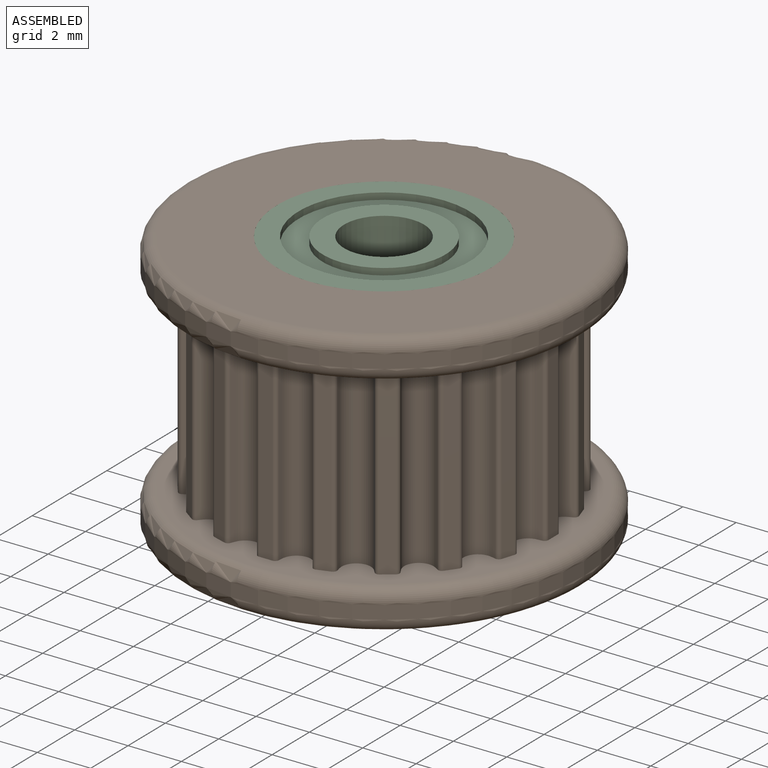
[diagram: assembled view]
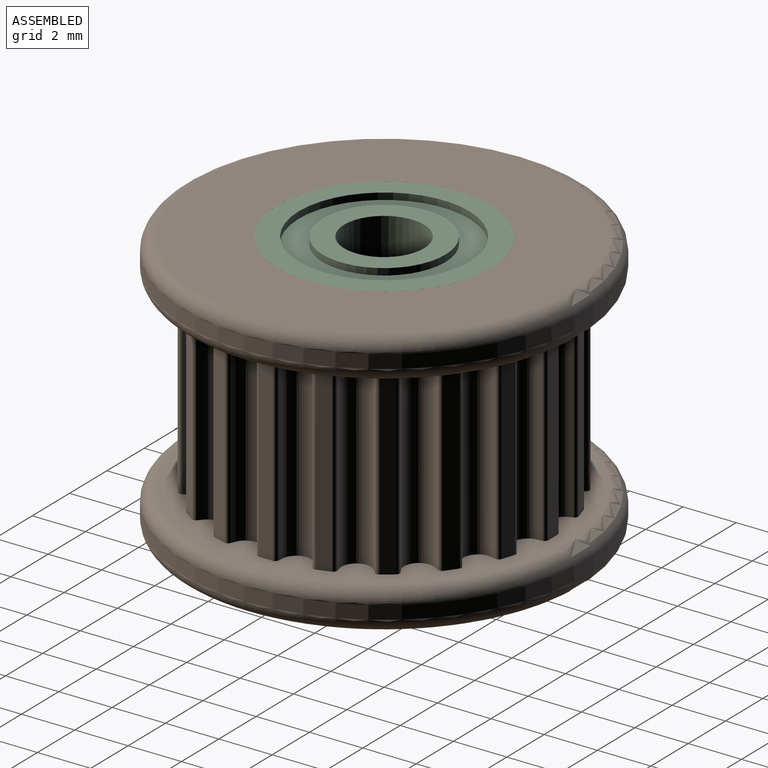
[diagram: assembled view, second angle]
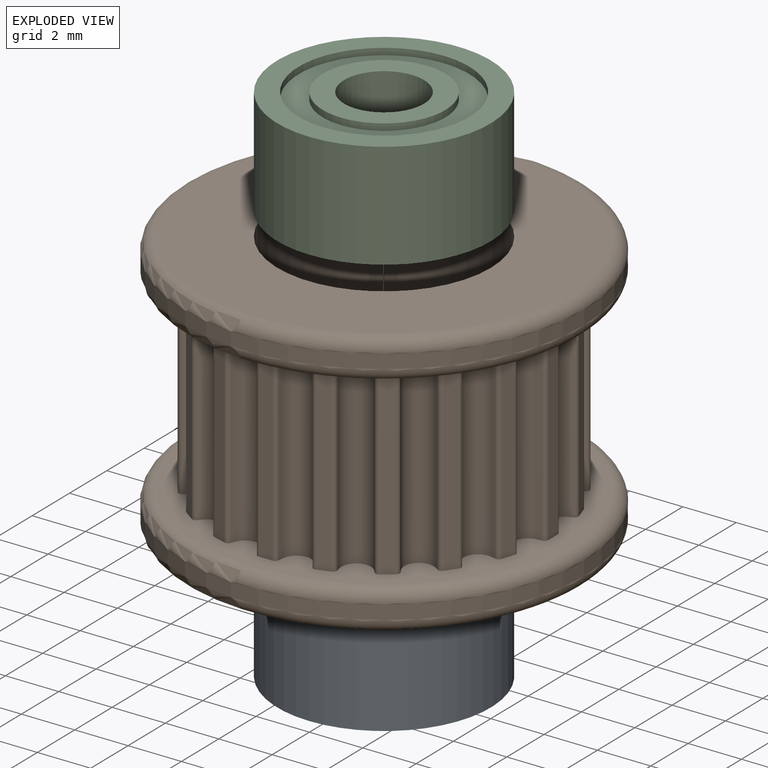
[diagram: exploded view]
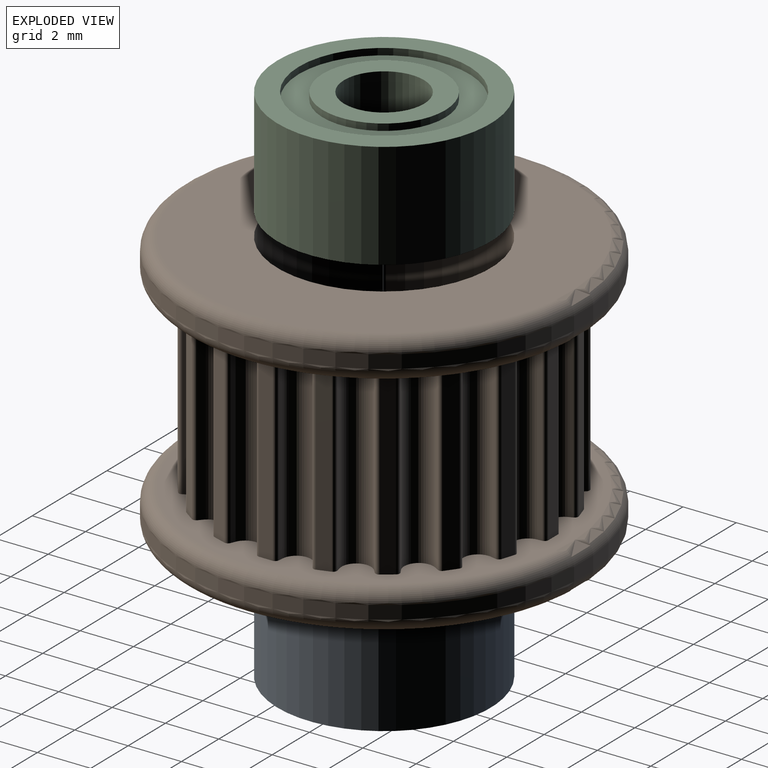
[diagram: exploded view, second angle]
ASSEMBLY  parts=3 mates=2
PART A: 12 faces, bbox 8x4x8 mm
  f0: cylinder r=2.3mm len=4.6mm, axis (0,1,0), area 3.6mm2, adj f4,f11
  f1: cylinder r=1.5mm len=4mm, axis (0,1,0), area 37.7mm2, adj f3,f4
  f2: cylinder r=2.3mm len=4.6mm, axis (0,1,0), area 3.6mm2, adj f3,f10
  f3: plane 4.6x4.6mm, normal (0,-1,0), area 9.6mm2, adj f1,f2
  f4: plane 4.6x4.6mm, normal (0,1,0), area 9.6mm2, adj f0,f1
  f5: cylinder r=3.2mm len=6.4mm, axis (0,1,0), area 5mm2, adj f9,f11
  f6: cylinder r=3.2mm len=6.4mm, axis (0,1,0), area 5mm2, adj f8,f10
  f7: cylinder r=4mm len=8mm, axis (0,1,0), area 100.5mm2, adj f8,f9
  f8: plane 8x8mm, normal (0,-1,0), area 18.1mm2, adj f6,f7
  f9: plane 8x8mm, normal (0,1,0), area 18.1mm2, adj f5,f7
  f10: plane 6.4x6.4mm, normal (0,-1,0), area 15.6mm2, adj f2,f6
  f11: plane 6.4x6.4mm, normal (0,1,0), area 15.6mm2, adj f0,f5
PART B: 155 faces, bbox 16.2x16.2x10 mm
  f0: cylinder r=1.5mm len=3mm, axis (0,0,1), area 18.8mm2, adj f152,f153
  f1: plane 7x0.5mm, normal (1,0,0), area 3.5mm2, adj f2,f7,f141,f146
  f2: cylinder r=0.14mm len=7mm, axis (0,0,-1), area 1.5mm2, adj f1,f3,f141,f146
  f3: plane 7x0.18mm, normal (0.09,1,0), area 1.3mm2, adj f2,f4,f141,f146
  f4: cylinder r=0.56mm len=7mm, axis (0,0,-1), area 5.1mm2, adj f3,f138,f141,f146
  f5: cylinder r=0.56mm len=7mm, axis (0,0,-1), area 5.1mm2, adj f6,f11,f141,f146
  f6: plane 7x0.18mm, normal (0.09,-1,0), area 1.3mm2, adj f5,f7,f141,f146
  f7: cylinder r=0.14mm len=7mm, axis (0,0,-1), area 1.5mm2, adj f1,f6,f141,f146
  f8: plane 7x0.48mm, normal (0.95,-0.31,0), area 3.5mm2, adj f9,f14,f141,f146
  f9: cylinder r=0.14mm len=7mm, axis (0,0,-1), area 1.5mm2, adj f8,f10,f141,f146
  f10: plane 7x0.17mm, normal (0.39,0.92,0), area 1.3mm2, adj f9,f11,f141,f146
  f11: cylinder r=0.56mm len=7mm, axis (0,0,-1), area 5.1mm2, adj f5,f10,f141,f146
  f12: cylinder r=0.56mm len=7mm, axis (0,0,-1), area 5.1mm2, adj f13,f18,f141,f146
  f13: plane 7x0.18mm, normal (-0.22,-0.98,0), area 1.3mm2, adj f12,f14,f141,f146
  f14: cylinder r=0.14mm len=7mm, axis (0,0,-1), area 1.5mm2, adj f8,f13,f141,f146
  f15: plane 7x0.41mm, normal (0.81,-0.59,0), area 3.5mm2, adj f16,f21,f141,f146
  f16: cylinder r=0.14mm len=7mm, axis (0,0,-1), area 1.5mm2, adj f15,f17,f141,f146
  f17: plane 7x0.14mm, normal (0.66,0.75,0), area 1.3mm2, adj f16,f18,f141,f146
  f18: cylinder r=0.56mm len=7mm, axis (0,0,-1), area 5.1mm2, adj f12,f17,f141,f146
  f19: cylinder r=0.56mm len=7mm, axis (0,0,-1), area 5.1mm2, adj f20,f25,f141,f146
  f20: plane 7x0.16mm, normal (-0.51,-0.86,0), area 1.3mm2, adj f19,f21,f141,f146
  f21: cylinder r=0.14mm len=7mm, axis (0,0,-1), area 1.5mm2, adj f15,f20,f141,f146
  f22: plane 7x0.41mm, normal (0.59,-0.81,0), area 3.5mm2, adj f23,f28,f141,f146
  f23: cylinder r=0.14mm len=7mm, axis (0,0,-1), area 1.5mm2, adj f22,f24,f141,f146
  f24: plane 7x0.16mm, normal (0.86,0.51,0), area 1.3mm2, adj f23,f25,f141,f146
  f25: cylinder r=0.56mm len=7mm, axis (0,0,-1), area 5.1mm2, adj f19,f24,f141,f146
  f26: cylinder r=0.56mm len=7mm, axis (0,0,-1), area 5.1mm2, adj f27,f32,f141,f146
  f27: plane 7x0.14mm, normal (-0.75,-0.66,0), area 1.3mm2, adj f26,f28,f141,f146
  f28: cylinder r=0.14mm len=7mm, axis (0,0,-1), area 1.5mm2, adj f22,f27,f141,f146
  f29: plane 7x0.48mm, normal (0.31,-0.95,0), area 3.5mm2, adj f30,f35,f141,f146
  f30: cylinder r=0.14mm len=7mm, axis (0,0,-1), area 1.5mm2, adj f29,f31,f141,f146
  f31: plane 7x0.18mm, normal (0.98,0.22,0), area 1.3mm2, adj f30,f32,f141,f146
  f32: cylinder r=0.56mm len=7mm, axis (0,0,-1), area 5.1mm2, adj f26,f31,f141,f146
  f33: cylinder r=0.56mm len=7mm, axis (0,0,-1), area 5.1mm2, adj f34,f39,f141,f146
  f34: plane 7x0.17mm, normal (-0.92,-0.39,0), area 1.3mm2, adj f33,f35,f141,f146
  f35: cylinder r=0.14mm len=7mm, axis (0,0,-1), area 1.5mm2, adj f29,f34,f141,f146
  f36: plane 7x0.5mm, normal (0,-1,0), area 3.5mm2, adj f37,f42,f141,f146
  f37: cylinder r=0.14mm len=7mm, axis (0,0,-1), area 1.5mm2, adj f36,f38,f141,f146
  f38: plane 7x0.18mm, normal (1,-0.09,0), area 1.3mm2, adj f37,f39,f141,f146
  f39: cylinder r=0.56mm len=7mm, axis (0,0,-1), area 5.1mm2, adj f33,f38,f141,f146
  f40: cylinder r=0.56mm len=7mm, axis (0,0,-1), area 5.1mm2, adj f41,f46,f141,f146
  f41: plane 7x0.18mm, normal (-1,-0.09,0), area 1.3mm2, adj f40,f42,f141,f146
  f42: cylinder r=0.14mm len=7mm, axis (0,0,-1), area 1.5mm2, adj f36,f41,f141,f146
  f43: plane 7x0.48mm, normal (-0.31,-0.95,0), area 3.5mm2, adj f44,f49,f141,f146
  f44: cylinder r=0.14mm len=7mm, axis (0,0,-1), area 1.5mm2, adj f43,f45,f141,f146
  f45: plane 7x0.17mm, normal (0.92,-0.39,0), area 1.3mm2, adj f44,f46,f141,f146
  f46: cylinder r=0.56mm len=7mm, axis (0,0,-1), area 5.1mm2, adj f40,f45,f141,f146
  f47: cylinder r=0.56mm len=7mm, axis (0,0,-1), area 5.1mm2, adj f48,f53,f141,f146
  f48: plane 7x0.18mm, normal (-0.98,0.22,0), area 1.3mm2, adj f47,f49,f141,f146
  f49: cylinder r=0.14mm len=7mm, axis (0,0,-1), area 1.5mm2, adj f43,f48,f141,f146
  f50: plane 7x0.41mm, normal (-0.59,-0.81,0), area 3.5mm2, adj f51,f56,f141,f146
  f51: cylinder r=0.14mm len=7mm, axis (0,0,-1), area 1.5mm2, adj f50,f52,f141,f146
  f52: plane 7x0.14mm, normal (0.75,-0.66,0), area 1.3mm2, adj f51,f53,f141,f146
  f53: cylinder r=0.56mm len=7mm, axis (0,0,-1), area 5.1mm2, adj f47,f52,f141,f146
  f54: cylinder r=0.56mm len=7mm, axis (0,0,-1), area 5.1mm2, adj f55,f60,f141,f146
  f55: plane 7x0.16mm, normal (-0.86,0.51,0), area 1.3mm2, adj f54,f56,f141,f146
  f56: cylinder r=0.14mm len=7mm, axis (0,0,-1), area 1.5mm2, adj f50,f55,f141,f146
  f57: plane 7x0.41mm, normal (-0.81,-0.59,0), area 3.5mm2, adj f58,f63,f141,f146
  f58: cylinder r=0.14mm len=7mm, axis (0,0,-1), area 1.5mm2, adj f57,f59,f141,f146
  f59: plane 7x0.16mm, normal (0.51,-0.86,0), area 1.3mm2, adj f58,f60,f141,f146
  f60: cylinder r=0.56mm len=7mm, axis (0,0,-1), area 5.1mm2, adj f54,f59,f141,f146
  f61: cylinder r=0.56mm len=7mm, axis (0,0,-1), area 5.1mm2, adj f62,f67,f141,f146
  f62: plane 7x0.14mm, normal (-0.66,0.75,0), area 1.3mm2, adj f61,f63,f141,f146
  f63: cylinder r=0.14mm len=7mm, axis (0,0,-1), area 1.5mm2, adj f57,f62,f141,f146
  f64: plane 7x0.48mm, normal (-0.95,-0.31,0), area 3.5mm2, adj f65,f70,f141,f146
  f65: cylinder r=0.14mm len=7mm, axis (0,0,-1), area 1.5mm2, adj f64,f66,f141,f146
  f66: plane 7x0.18mm, normal (0.22,-0.98,0), area 1.3mm2, adj f65,f67,f141,f146
  f67: cylinder r=0.56mm len=7mm, axis (0,0,-1), area 5.1mm2, adj f61,f66,f141,f146
  f68: cylinder r=0.56mm len=7mm, axis (0,0,-1), area 5.1mm2, adj f69,f74,f141,f146
  f69: plane 7x0.17mm, normal (-0.39,0.92,0), area 1.3mm2, adj f68,f70,f141,f146
  f70: cylinder r=0.14mm len=7mm, axis (0,0,-1), area 1.5mm2, adj f64,f69,f141,f146
  f71: plane 7x0.5mm, normal (-1,0,0), area 3.5mm2, adj f72,f77,f141,f146
  f72: cylinder r=0.14mm len=7mm, axis (0,0,-1), area 1.5mm2, adj f71,f73,f141,f146
  f73: plane 7x0.18mm, normal (-0.09,-1,0), area 1.3mm2, adj f72,f74,f141,f146
  f74: cylinder r=0.56mm len=7mm, axis (0,0,-1), area 5.1mm2, adj f68,f73,f141,f146
  f75: cylinder r=0.56mm len=7mm, axis (0,0,-1), area 5.1mm2, adj f76,f81,f141,f146
  f76: plane 7x0.18mm, normal (-0.09,1,0), area 1.3mm2, adj f75,f77,f141,f146
  f77: cylinder r=0.14mm len=7mm, axis (0,0,-1), area 1.5mm2, adj f71,f76,f141,f146
  f78: plane 7x0.48mm, normal (-0.95,0.31,0), area 3.5mm2, adj f79,f84,f141,f146
  f79: cylinder r=0.14mm len=7mm, axis (0,0,-1), area 1.5mm2, adj f78,f80,f141,f146
  f80: plane 7x0.17mm, normal (-0.39,-0.92,0), area 1.3mm2, adj f79,f81,f141,f146
  f81: cylinder r=0.56mm len=7mm, axis (0,0,-1), area 5.1mm2, adj f75,f80,f141,f146
  f82: cylinder r=0.56mm len=7mm, axis (0,0,-1), area 5.1mm2, adj f83,f88,f141,f146
  f83: plane 7x0.18mm, normal (0.22,0.98,0), area 1.3mm2, adj f82,f84,f141,f146
  f84: cylinder r=0.14mm len=7mm, axis (0,0,-1), area 1.5mm2, adj f78,f83,f141,f146
  f85: plane 7x0.41mm, normal (-0.81,0.59,0), area 3.5mm2, adj f86,f91,f141,f146
  f86: cylinder r=0.14mm len=7mm, axis (0,0,-1), area 1.5mm2, adj f85,f87,f141,f146
  f87: plane 7x0.14mm, normal (-0.66,-0.75,0), area 1.3mm2, adj f86,f88,f141,f146
  f88: cylinder r=0.56mm len=7mm, axis (0,0,-1), area 5.1mm2, adj f82,f87,f141,f146
  f89: cylinder r=0.56mm len=7mm, axis (0,0,-1), area 5.1mm2, adj f90,f95,f141,f146
  f90: plane 7x0.16mm, normal (0.51,0.86,0), area 1.3mm2, adj f89,f91,f141,f146
  f91: cylinder r=0.14mm len=7mm, axis (0,0,-1), area 1.5mm2, adj f85,f90,f141,f146
  f92: plane 7x0.41mm, normal (-0.59,0.81,0), area 3.5mm2, adj f93,f98,f141,f146
  f93: cylinder r=0.14mm len=7mm, axis (0,0,-1), area 1.5mm2, adj f92,f94,f141,f146
  f94: plane 7x0.16mm, normal (-0.86,-0.51,0), area 1.3mm2, adj f93,f95,f141,f146
  f95: cylinder r=0.56mm len=7mm, axis (0,0,-1), area 5.1mm2, adj f89,f94,f141,f146
  f96: cylinder r=0.56mm len=7mm, axis (0,0,-1), area 5.1mm2, adj f97,f102,f141,f146
  f97: plane 7x0.14mm, normal (0.75,0.66,0), area 1.3mm2, adj f96,f98,f141,f146
  f98: cylinder r=0.14mm len=7mm, axis (0,0,-1), area 1.5mm2, adj f92,f97,f141,f146
  f99: plane 7x0.48mm, normal (-0.31,0.95,0), area 3.5mm2, adj f100,f105,f141,f146
  f100: cylinder r=0.14mm len=7mm, axis (0,0,-1), area 1.5mm2, adj f99,f101,f141,f146
  f101: plane 7x0.18mm, normal (-0.98,-0.22,0), area 1.3mm2, adj f100,f102,f141,f146
  f102: cylinder r=0.56mm len=7mm, axis (0,0,-1), area 5.1mm2, adj f96,f101,f141,f146
  f103: cylinder r=0.56mm len=7mm, axis (0,0,-1), area 5.1mm2, adj f104,f109,f141,f146
  f104: plane 7x0.17mm, normal (0.92,0.39,0), area 1.3mm2, adj f103,f105,f141,f146
  f105: cylinder r=0.14mm len=7mm, axis (0,0,-1), area 1.5mm2, adj f99,f104,f141,f146
  f106: plane 7x0.5mm, normal (0,1,0), area 3.5mm2, adj f107,f112,f141,f146
  f107: cylinder r=0.14mm len=7mm, axis (0,0,-1), area 1.5mm2, adj f106,f108,f141,f146
  f108: plane 7x0.18mm, normal (-1,0.09,0), area 1.3mm2, adj f107,f109,f141,f146
  f109: cylinder r=0.56mm len=7mm, axis (0,0,-1), area 5.1mm2, adj f103,f108,f141,f146
  f110: cylinder r=0.56mm len=7mm, axis (0,0,-1), area 5.1mm2, adj f111,f116,f141,f146
  f111: plane 7x0.18mm, normal (1,0.09,0), area 1.3mm2, adj f110,f112,f141,f146
  f112: cylinder r=0.14mm len=7mm, axis (0,0,-1), area 1.5mm2, adj f106,f111,f141,f146
  f113: plane 7x0.48mm, normal (0.31,0.95,0), area 3.5mm2, adj f114,f119,f141,f146
  f114: cylinder r=0.14mm len=7mm, axis (0,0,-1), area 1.5mm2, adj f113,f115,f141,f146
  f115: plane 7x0.17mm, normal (-0.92,0.39,0), area 1.3mm2, adj f114,f116,f141,f146
  f116: cylinder r=0.56mm len=7mm, axis (0,0,-1), area 5.1mm2, adj f110,f115,f141,f146
  f117: cylinder r=0.56mm len=7mm, axis (0,0,-1), area 5.1mm2, adj f118,f123,f141,f146
  f118: plane 7x0.18mm, normal (0.98,-0.22,0), area 1.3mm2, adj f117,f119,f141,f146
  f119: cylinder r=0.14mm len=7mm, axis (0,0,-1), area 1.5mm2, adj f113,f118,f141,f146
  f120: plane 7x0.41mm, normal (0.59,0.81,0), area 3.5mm2, adj f121,f126,f141,f146
  f121: cylinder r=0.14mm len=7mm, axis (0,0,-1), area 1.5mm2, adj f120,f122,f141,f146
  f122: plane 7x0.14mm, normal (-0.75,0.66,0), area 1.3mm2, adj f121,f123,f141,f146
  f123: cylinder r=0.56mm len=7mm, axis (0,0,-1), area 5.1mm2, adj f117,f122,f141,f146
  f124: cylinder r=0.56mm len=7mm, axis (0,0,-1), area 5.1mm2, adj f125,f130,f141,f146
  f125: plane 7x0.16mm, normal (0.86,-0.51,0), area 1.3mm2, adj f124,f126,f141,f146
  f126: cylinder r=0.14mm len=7mm, axis (0,0,-1), area 1.5mm2, adj f120,f125,f141,f146
  f127: plane 7x0.41mm, normal (0.81,0.59,0), area 3.5mm2, adj f128,f133,f141,f146
  f128: cylinder r=0.14mm len=7mm, axis (0,0,-1), area 1.5mm2, adj f127,f129,f141,f146
  f129: plane 7x0.16mm, normal (-0.51,0.86,0), area 1.3mm2, adj f128,f130,f141,f146
  f130: cylinder r=0.56mm len=7mm, axis (0,0,-1), area 5.1mm2, adj f124,f129,f141,f146
  f131: cylinder r=0.56mm len=7mm, axis (0,0,-1), area 5.1mm2, adj f132,f137,f141,f146
  f132: plane 7x0.14mm, normal (0.66,-0.75,0), area 1.3mm2, adj f131,f133,f141,f146
  f133: cylinder r=0.14mm len=7mm, axis (0,0,-1), area 1.5mm2, adj f127,f132,f141,f146
  f134: plane 7x0.48mm, normal (0.95,0.31,0), area 3.5mm2, adj f135,f140,f141,f146
  f135: cylinder r=0.14mm len=7mm, axis (0,0,-1), area 1.5mm2, adj f134,f136,f141,f146
  f136: plane 7x0.18mm, normal (-0.22,0.98,0), area 1.3mm2, adj f135,f137,f141,f146
  f137: cylinder r=0.56mm len=7mm, axis (0,0,-1), area 5.1mm2, adj f131,f136,f141,f146
  f138: cylinder r=0.56mm len=7mm, axis (0,0,-1), area 5.1mm2, adj f4,f139,f141,f146
  f139: plane 7x0.17mm, normal (0.39,-0.92,0), area 1.3mm2, adj f138,f140,f141,f146
  f140: cylinder r=0.14mm len=7mm, axis (0,0,-1), area 1.5mm2, adj f134,f139,f141,f146
  f141: plane 14x14mm, normal (0,0,-1), area 41.7mm2, adj f1,f2,f3,f4,f5,f6,f7,f8
  f142: torus R=7mm, axis (0,0,-1), area 36.1mm2, adj f141,f143
  f143: cylinder r=7.5mm len=15mm, axis (0,0,-1), area 23.6mm2, adj f142,f144
  f144: torus R=7mm, axis (0,0,-1), area 36.1mm2, adj f143,f145
  f145: plane 14x14mm, normal (0,0,1), area 103.7mm2, adj f144,f151
  f146: plane 14x14mm, normal (0,0,1), area 41.7mm2, adj f1,f2,f3,f4,f5,f6,f7,f8
  f147: plane 14x14mm, normal (0,0,-1), area 103.7mm2, adj f148,f154
  f148: torus R=7mm, axis (0,0,-1), area 36.1mm2, adj f147,f149
  f149: cylinder r=7.5mm len=15mm, axis (0,0,-1), area 23.6mm2, adj f148,f150
  f150: torus R=7mm, axis (0,0,-1), area 36.1mm2, adj f146,f149
  f151: cylinder r=4mm len=8mm, axis (0,0,-1), area 100.5mm2, adj f145,f152
  f152: plane 8x8mm, normal (0,0,1), area 43.2mm2, adj f0,f151
  f153: plane 8x8mm, normal (0,0,-1), area 43.2mm2, adj f0,f154
  f154: cylinder r=4mm len=8mm, axis (0,0,1), area 100.5mm2, adj f147,f153
PART C: same geometry as A
PLACE A rot(axis=(-1,0,0),90deg) t=(0,0,-8)mm
PLACE B t=(0,0,-5)mm
PLACE C rot(axis=(-1,0,0),90deg) t=(0,0,-2)mm
MATE fastened A.f7 <-> B.f151  axis (0,0,-1) through (0,0,-10)mm
MATE fastened C.f1 <-> B.f151  axis (0,0,1) through (0,0,0)mm
